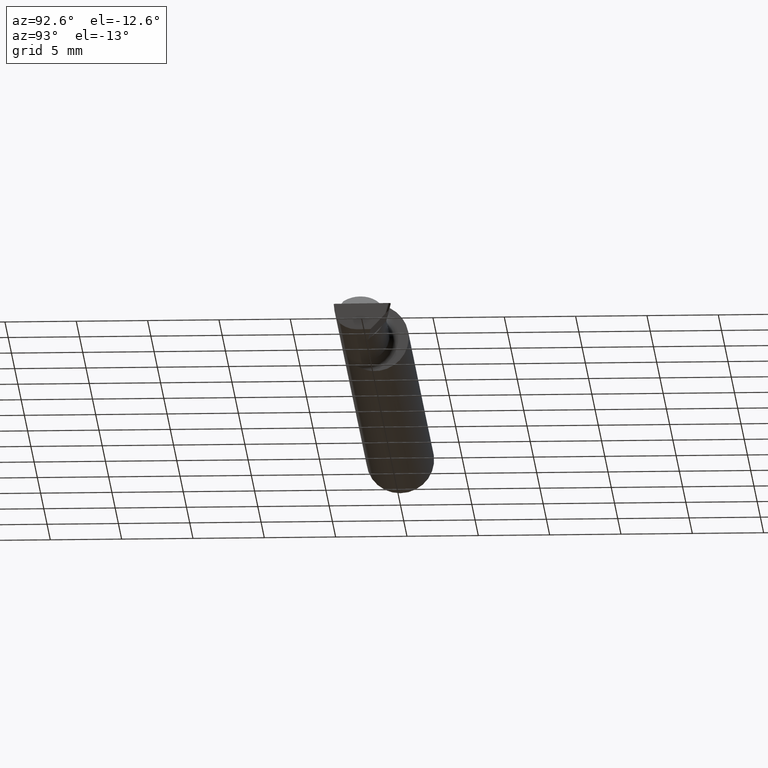
[diagram: clean part render]
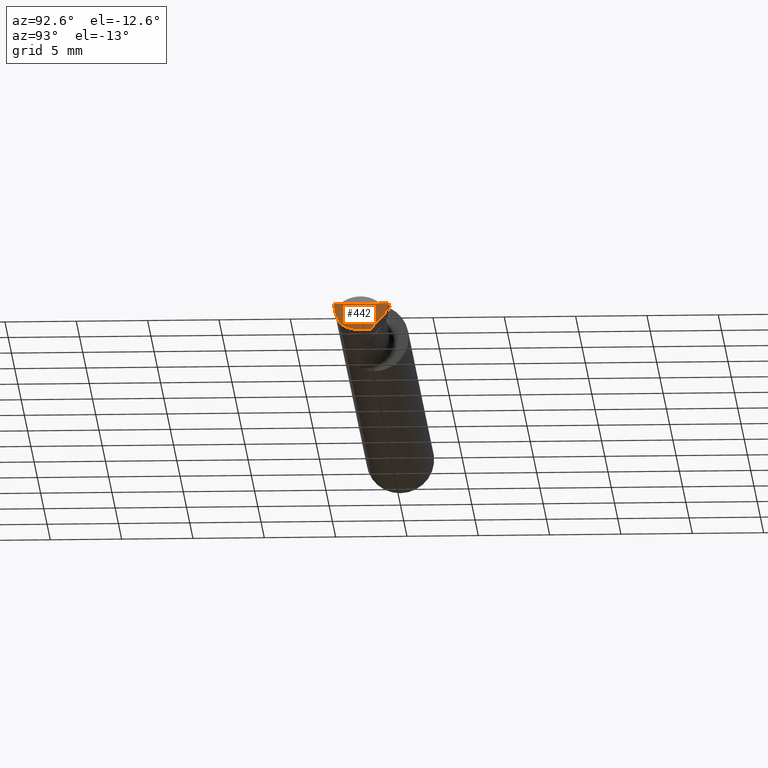
[diagram: same view with one face highlighted and labeled with its STEP entity id]
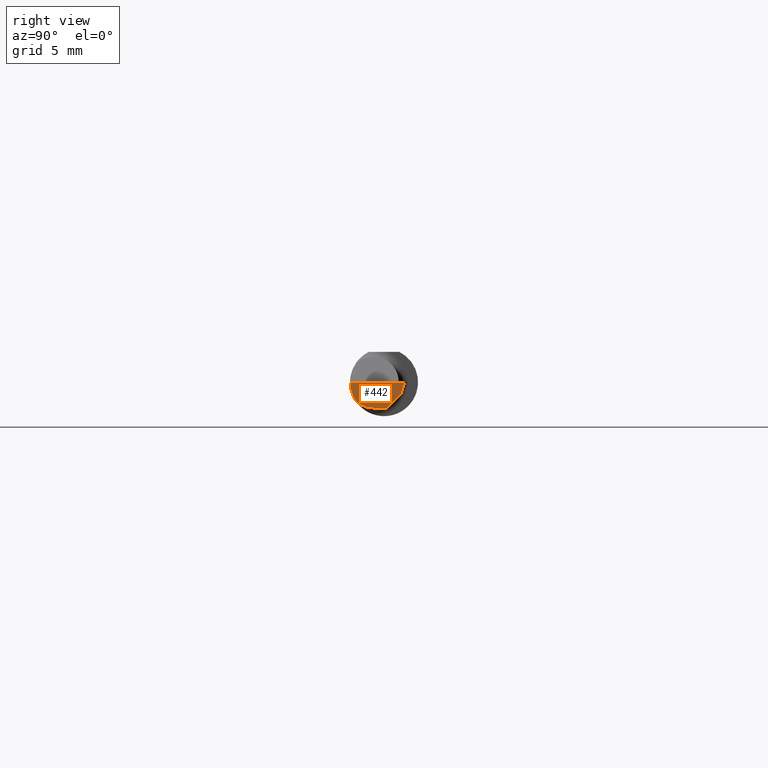
[diagram: same view with one face highlighted and labeled with its STEP entity id]
A machine part, auxiliary view. The second image highlights one B-rep face of the part: STEP entity #442.
A second angle (right view) of the same face is appended — the face is thin or edge-on in the first view.
In plain terms, the highlighted planar face has unit normal (-0.9922, 0.026, 0.1219).
Its self-contained STEP definition (entity closure, byte-faithful):
#10 = CARTESIAN_POINT ( 'NONE',  ( 1.991772787678610435, -0.2497845628634191573, -6.377686106282116365E-17 ) ) ;
#20 = VECTOR ( 'NONE', #141, 39.37007874015748854 ) ;
#23 = CARTESIAN_POINT ( 'NONE',  ( 1.988806546520622609, -0.03049999999999999586, -0.07090000000000000469 ) ) ;
#42 = DIRECTION ( 'NONE',  ( 0.1219104985252570661, 0.0000000000000000000, 0.9925410975618708109 ) ) ;
#46 = CARTESIAN_POINT ( 'NONE',  ( 1.988806546520622609, -0.03049999999999999586, -0.07090000000000000469 ) ) ;
#50 = EDGE_LOOP ( 'NONE', ( #597, #629, #497, #440, #604, #136 ) ) ;
#52 = DIRECTION ( 'NONE',  ( -0.9922060308645512805, 0.02598182930468072652, 0.1218693434051217050 ) ) ;
#54 = CARTESIAN_POINT ( 'NONE',  ( 1.989680968235101988, -0.07646557377049188753, -0.05398125626501726337 ) ) ;
#66 = VERTEX_POINT ( 'NONE', #613 ) ;
#71 = FACE_OUTER_BOUND ( 'NONE', #50, .T. ) ;
#81 = VECTOR ( 'NONE', #504, 39.37007874015748854 ) ;
#103 = VERTEX_POINT ( 'NONE', #420 ) ;
#117 = CARTESIAN_POINT ( 'NONE',  ( 1.987153287650115008, -0.009717623157789102850, -0.08879077981908641004 ) ) ;
#126 = LINE ( 'NONE', #117, #20 ) ;
#128 = VECTOR ( 'NONE', #321, 39.37007874015748854 ) ;
#136 = ORIENTED_EDGE ( 'NONE', *, *, #421, .F. ) ;
#141 = DIRECTION ( 'NONE',  ( -0.1053106618241542169, -0.6976485211320176960, -0.7086580314005247461 ) ) ;
#156 = VERTEX_POINT ( 'NONE', #46 ) ;
#161 = CARTESIAN_POINT ( 'NONE',  ( 1.989811960493453435, 0.007895210578134201698, -0.07090000000000000469 ) ) ;
#165 = EDGE_CURVE ( 'NONE', #66, #485, #126, .T. ) ;
#193 = PLANE ( 'NONE',  #252 ) ;
#218 = CARTESIAN_POINT ( 'NONE',  ( 1.989680968235101988, -0.07646557377049188753, -0.05398125626501726337 ) ) ;
#230 = CARTESIAN_POINT ( 'NONE',  ( 1.989680968235101988, -0.07646557377049188753, -0.05398125626501726337 ) ) ;
#252 = AXIS2_PLACEMENT_3D ( 'NONE', #344, #52, #42 ) ;
#253 = CARTESIAN_POINT ( 'NONE',  ( 1.995862624392067852, -0.09360000000000009979, -6.605666309584449409E-17 ) ) ;
#262 = CARTESIAN_POINT ( 'NONE',  ( 1.988360720229885636, -0.04752541915734222189, -0.07089999999999997693 ) ) ;
#272 = CARTESIAN_POINT ( 'NONE',  ( 1.993469067315748244, -0.09360000000000004428, -0.01948727793214142037 ) ) ;
#291 = CARTESIAN_POINT ( 'NONE',  ( 1.985368221927906740, 0.02181583460911406050, -0.1100467398478503361 ) ) ;
#309 = VERTEX_POINT ( 'NONE', #463 ) ;
#321 = DIRECTION ( 'NONE',  ( -0.02617694830786038498, -0.9996573249755575929, 0.0000000000000000000 ) ) ;
#326 = EDGE_CURVE ( 'NONE', #423, #103, #521, .T. ) ;
#331 = CARTESIAN_POINT ( 'NONE',  ( 1.988814216640107491, -0.03020708995424807933, -0.07090000000000000469 ) ) ;
#344 = CARTESIAN_POINT ( 'NONE',  ( 1.986456763647800550, -0.06267397991240475363, -0.08317158399080336328 ) ) ;
#345 = EDGE_CURVE ( 'NONE', #66, #309, #617, .T. ) ;
#419 = CARTESIAN_POINT ( 'NONE',  ( 1.988664666329833519, -0.06350290078668616167, -0.06501910055627763141 ) ) ;
#420 = CARTESIAN_POINT ( 'NONE',  ( 1.995862624392067852, -0.09360000000000009979, -6.605666309584449409E-17 ) ) ;
#421 = EDGE_CURVE ( 'NONE', #485, #156, #667, .T. ) ;
#423 = VERTEX_POINT ( 'NONE', #54 ) ;
#438 = EDGE_CURVE ( 'NONE', #103, #309, #609, .T. ) ;
#440 = ORIENTED_EDGE ( 'NONE', *, *, #326, .F. ) ;
#442 = ADVANCED_FACE ( 'NONE', ( #71 ), #193, .F. ) ;
#455 = VECTOR ( 'NONE', #587, 39.37007874015748854 ) ;
#460 =( BOUNDED_CURVE ( )  B_SPLINE_CURVE ( 3, ( #218, #419, #262, #23 ),
 .UNSPECIFIED., .F., .T. ) 
 B_SPLINE_CURVE_WITH_KNOTS ( ( 4, 4 ),
 ( 5.787864769132275100, 6.493234751459696419 ),
 .UNSPECIFIED. ) 
 CURVE ( )  GEOMETRIC_REPRESENTATION_ITEM ( )  RATIONAL_B_SPLINE_CURVE ( ( 1.000000000000000000, 0.9589657668801496726, 0.9589657668801496726, 1.000000000000000000 ) ) 
 REPRESENTATION_ITEM ( '' )  );
#463 = CARTESIAN_POINT ( 'NONE',  ( 1.999806390372778075, 0.05700634663142072761, -6.825504076481286703E-17 ) ) ;
#485 = VERTEX_POINT ( 'NONE', #161 ) ;
#489 = CARTESIAN_POINT ( 'NONE',  ( 1.991342063257270478, -0.08770433171880961942, -0.03806132156089087060 ) ) ;
#497 = ORIENTED_EDGE ( 'NONE', *, *, #438, .F. ) ;
#504 = DIRECTION ( 'NONE',  ( 0.1240019227989063721, 0.3022330132596636187, 0.9451342385281351621 ) ) ;
#521 =( BOUNDED_CURVE ( )  B_SPLINE_CURVE ( 3, ( #230, #489, #272, #253 ),
 .UNSPECIFIED., .F., .F. ) 
 B_SPLINE_CURVE_WITH_KNOTS ( ( 4, 4 ),
 ( 0.7460354263298288879, 1.360746882514785705 ),
 .UNSPECIFIED. ) 
 CURVE ( )  GEOMETRIC_REPRESENTATION_ITEM ( )  RATIONAL_B_SPLINE_CURVE ( ( 1.000000000000000000, 0.9687579316594155943, 0.9687579316594155943, 1.000000000000000000 ) ) 
 REPRESENTATION_ITEM ( '' )  );
#561 = EDGE_CURVE ( 'NONE', #423, #156, #460, .T. ) ;
#587 = DIRECTION ( 'NONE',  ( 0.02617694830786037805, 0.9996573249755575929, -1.459184416195409269E-17 ) ) ;
#597 = ORIENTED_EDGE ( 'NONE', *, *, #165, .F. ) ;
#604 = ORIENTED_EDGE ( 'NONE', *, *, #561, .T. ) ;
#609 = LINE ( 'NONE', #10, #455 ) ;
#613 = CARTESIAN_POINT ( 'NONE',  ( 1.995722974169267028, 0.04705373335152992359, -0.03112352112763096257 ) ) ;
#617 = LINE ( 'NONE', #291, #81 ) ;
#629 = ORIENTED_EDGE ( 'NONE', *, *, #345, .T. ) ;
#667 = LINE ( 'NONE', #331, #128 ) ;